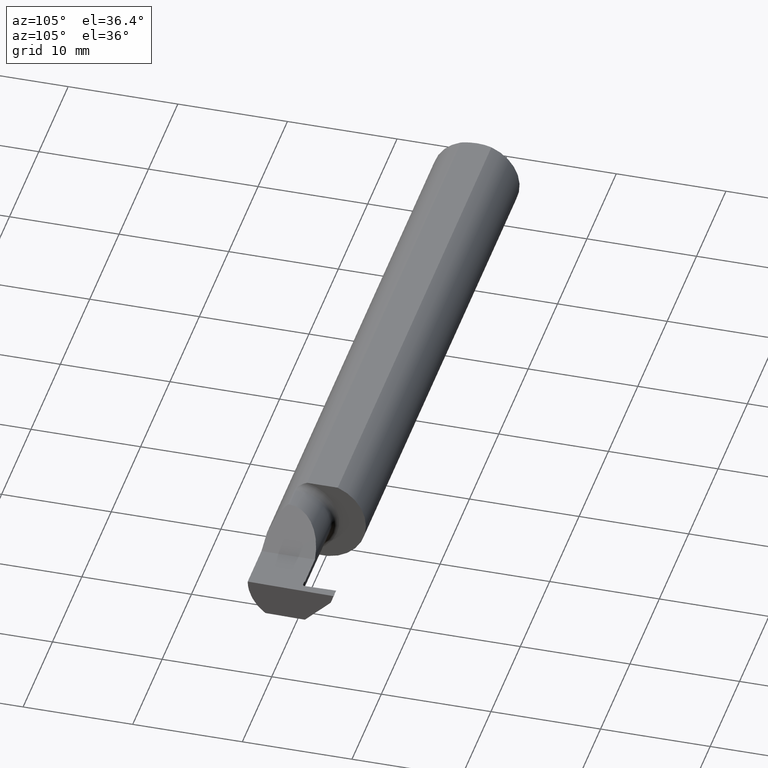
[diagram: clean part render]
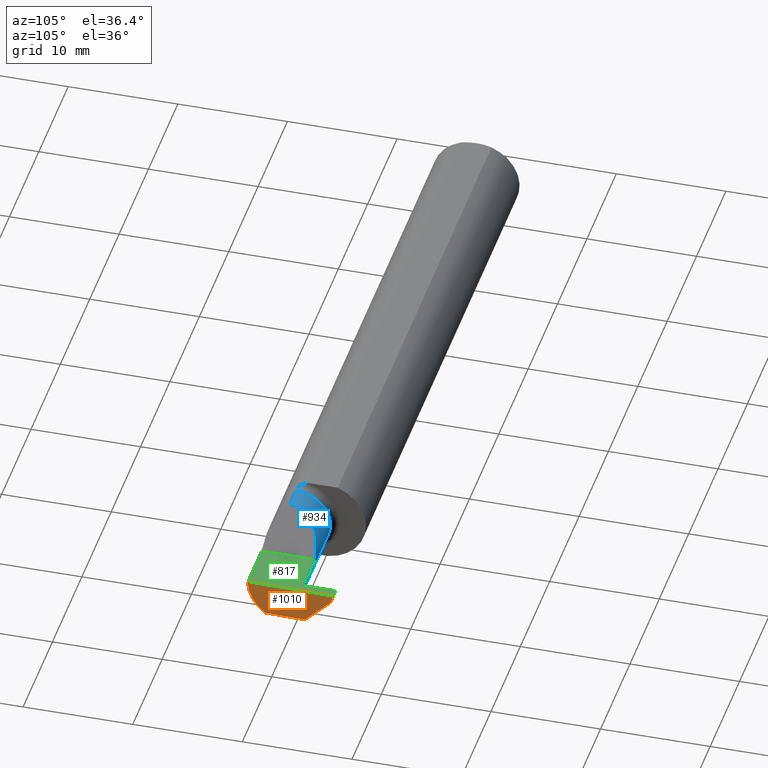
[diagram: same view with three faces highlighted in distinct colors, each labeled with its STEP entity id]
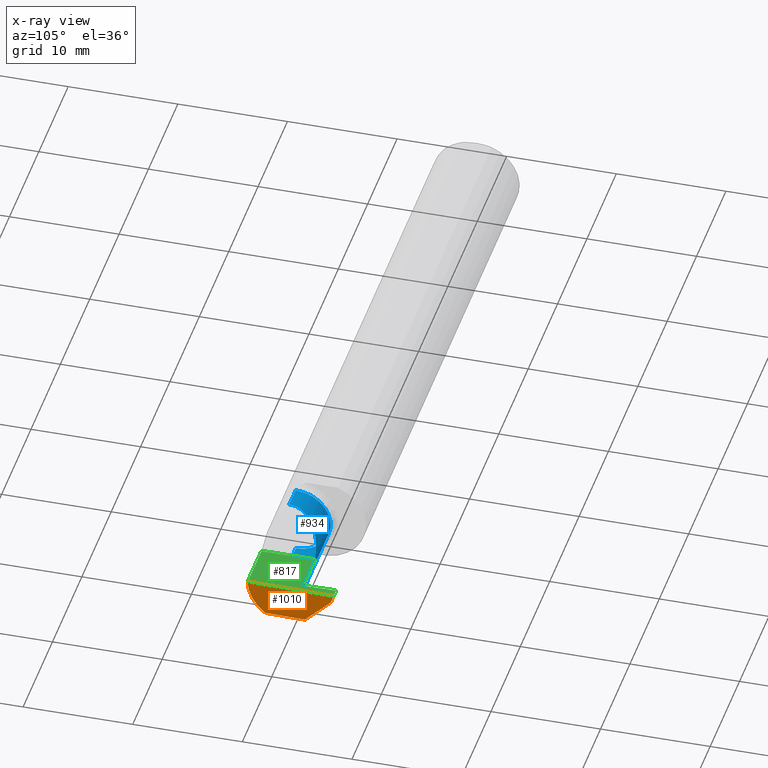
[diagram: x-ray of the same camera — body ghosted, the three highlighted faces saturated]
A machine part, auxiliary view with three faces highlighted in distinct colors.
The next image is the same camera in x-ray (body ghosted, the three faces saturated) — at least one of them is partly hidden behind the body in this view.
Their STEP definitions:

[orange] entity #1010 — the highlighted planar face has unit normal (-0.9995, 0.0174, 0.0262).
#18 = LINE ( 'NONE', #674, #98 ) ;
#23 = CARTESIAN_POINT ( 'NONE',  ( 2.500000000000000000, 0.1539000000000000090, 0.000000000000000000 ) ) ;
#45 = ORIENTED_EDGE ( 'NONE', *, *, #777, .F. ) ;
#57 =( BOUNDED_CURVE ( )  B_SPLINE_CURVE ( 3, ( #101, #245, #263, #589 ),
 .UNSPECIFIED., .F., .T. ) 
 B_SPLINE_CURVE_WITH_KNOTS ( ( 4, 4 ),
 ( 0.5517985523994612951, 0.5878737167659243701 ),
 .UNSPECIFIED. ) 
 CURVE ( )  GEOMETRIC_REPRESENTATION_ITEM ( )  RATIONAL_B_SPLINE_CURVE ( ( 1.000000000000000000, 0.9998915514833921492, 0.9998915514833921492, 1.000000000000000000 ) ) 
 REPRESENTATION_ITEM ( '' )  );
#98 = VECTOR ( 'NONE', #346, 39.37007874015748143 ) ;
#101 = CARTESIAN_POINT ( 'NONE',  ( 2.492408115719126460, -0.09360841750841747411, -0.1249186702281520206 ) ) ;
#105 = FACE_OUTER_BOUND ( 'NONE', #519, .T. ) ;
#113 = ORIENTED_EDGE ( 'NONE', *, *, #555, .T. ) ;
#119 = ORIENTED_EDGE ( 'NONE', *, *, #508, .T. ) ;
#134 = DIRECTION ( 'NONE',  ( -0.01745240643727716257, -0.9998476951563912696, 1.869448656733061176E-16 ) ) ;
#157 = CARTESIAN_POINT ( 'NONE',  ( 2.499907390804593899, 0.1529096977137292535, -0.002876046671974680051 ) ) ;
#209 = DIRECTION ( 'NONE',  ( -0.9995050723230146650, 0.01744642593347468448, 0.02617694830787320806 ) ) ;
#221 = VECTOR ( 'NONE', #256, 39.37007874015748854 ) ;
#241 = ORIENTED_EDGE ( 'NONE', *, *, #895, .F. ) ;
#245 = CARTESIAN_POINT ( 'NONE',  ( 2.492432917398131220, -0.09210618219364773152, -0.1249728871357007887 ) ) ;
#248 = VERTEX_POINT ( 'NONE', #807 ) ;
#256 = DIRECTION ( 'NONE',  ( -0.03043175897092292859, -0.3254173665140246419, -0.9450806556146477133 ) ) ;
#263 = CARTESIAN_POINT ( 'NONE',  ( 2.492458441733171881, -0.09060321336276837279, -0.1250000000000000278 ) ) ;
#320 = CARTESIAN_POINT ( 'NONE',  ( 2.492495113650786021, -0.1336908980339254205, -0.09488266708345007017 ) ) ;
#323 = EDGE_CURVE ( 'NONE', #822, #838, #365, .T. ) ;
#331 = VERTEX_POINT ( 'NONE', #415 ) ;
#346 = DIRECTION ( 'NONE',  ( -0.01745240643727716603, -0.9998476951563912696, 0.000000000000000000 ) ) ;
#348 = VECTOR ( 'NONE', #134, 39.37007874015748143 ) ;
#358 = DIRECTION ( 'NONE',  ( 0.02618093305822682959, 0.000000000000000000, 0.9996572206232497981 ) ) ;
#365 =( BOUNDED_CURVE ( )  B_SPLINE_CURVE ( 3, ( #727, #320, #490, #403 ),
 .UNSPECIFIED., .F., .T. ) 
 B_SPLINE_CURVE_WITH_KNOTS ( ( 4, 4 ),
 ( 0.05521439950980804034, 0.9829226100289724100 ),
 .UNSPECIFIED. ) 
 CURVE ( )  GEOMETRIC_REPRESENTATION_ITEM ( )  RATIONAL_B_SPLINE_CURVE ( ( 1.000000000000000000, 0.9295565493311498395, 0.9295565493311498395, 1.000000000000000000 ) ) 
 REPRESENTATION_ITEM ( '' )  );
#378 = CARTESIAN_POINT ( 'NONE',  ( 2.492484680420020027, -0.08910000000000001252, -0.1250000000000000000 ) ) ;
#403 = CARTESIAN_POINT ( 'NONE',  ( 2.494588929872255001, -0.1561000000000000443, 0.000000000000000000 ) ) ;
#415 = CARTESIAN_POINT ( 'NONE',  ( 2.500000000000000000, 0.1539000000000000090, 0.000000000000000000 ) ) ;
#461 = EDGE_CURVE ( 'NONE', #794, #248, #819, .T. ) ;
#490 = CARTESIAN_POINT ( 'NONE',  ( 2.493277140361873201, -0.1561000000000000165, -0.05008759057876776416 ) ) ;
#508 = EDGE_CURVE ( 'NONE', #331, #838, #18, .T. ) ;
#519 = EDGE_LOOP ( 'NONE', ( #113, #45, #938, #241, #119, #766 ) ) ;
#555 = EDGE_CURVE ( 'NONE', #822, #728, #57, .T. ) ;
#557 = DIRECTION ( 'NONE',  ( -0.03084697155452407330, -0.7067702824630920366, -0.7067702824630894831 ) ) ;
#589 = CARTESIAN_POINT ( 'NONE',  ( 2.492484680420020027, -0.08910000000000001252, -0.1250000000000000000 ) ) ;
#608 = CARTESIAN_POINT ( 'NONE',  ( 2.494588929872255001, -0.1561000000000000443, 0.000000000000000000 ) ) ;
#631 = AXIS2_PLACEMENT_3D ( 'NONE', #23, #209, #358 ) ;
#674 = CARTESIAN_POINT ( 'NONE',  ( 2.500000000000000000, 0.1539000000000000090, 0.000000000000000000 ) ) ;
#727 = CARTESIAN_POINT ( 'NONE',  ( 2.492408115719126460, -0.09360841750841747411, -0.1249186702281520206 ) ) ;
#728 = VERTEX_POINT ( 'NONE', #378 ) ;
#733 = VECTOR ( 'NONE', #557, 39.37007874015748854 ) ;
#738 = CARTESIAN_POINT ( 'NONE',  ( 2.495673289801201733, 0.09357530910345747410, -0.1250000000000000278 ) ) ;
#758 = CARTESIAN_POINT ( 'NONE',  ( 2.499001794690755673, 0.1432258439880203515, -0.03099999999999999978 ) ) ;
#766 = ORIENTED_EDGE ( 'NONE', *, *, #323, .F. ) ;
#777 = EDGE_CURVE ( 'NONE', #248, #728, #894, .T. ) ;
#794 = VERTEX_POINT ( 'NONE', #758 ) ;
#807 = CARTESIAN_POINT ( 'NONE',  ( 2.494899167008080454, 0.04922584398801997663, -0.1250000000000000278 ) ) ;
#819 = LINE ( 'NONE', #1001, #733 ) ;
#822 = VERTEX_POINT ( 'NONE', #940 ) ;
#838 = VERTEX_POINT ( 'NONE', #608 ) ;
#894 = LINE ( 'NONE', #738, #348 ) ;
#895 = EDGE_CURVE ( 'NONE', #331, #794, #914, .T. ) ;
#914 = LINE ( 'NONE', #157, #221 ) ;
#938 = ORIENTED_EDGE ( 'NONE', *, *, #461, .F. ) ;
#940 = CARTESIAN_POINT ( 'NONE',  ( 2.492408115719126460, -0.09360841750841747411, -0.1249186702281520206 ) ) ;
#955 = PLANE ( 'NONE',  #631 ) ;
#1001 = CARTESIAN_POINT ( 'NONE',  ( 2.498907590953288960, 0.1410674343035965006, -0.03315840968442382991 ) ) ;
#1010 = ADVANCED_FACE ( 'NONE', ( #105 ), #955, .F. ) ;

[blue] entity #934 — the highlighted cylindrical surface (edge-blend (fillet) strip) has radius 3.175 mm, axis along (-1, -0, -0).
#6 = CARTESIAN_POINT ( 'NONE',  ( 2.075000000000000178, -0.08909999999999998477, 0.000000000000000000 ) ) ;
#14 = ORIENTED_EDGE ( 'NONE', *, *, #539, .F. ) ;
#36 = CARTESIAN_POINT ( 'NONE',  ( 2.448913571814040679, -0.03369782742854583735, -0.1123476434581987121 ) ) ;
#58 = DIRECTION ( 'NONE',  ( -1.000000000000000000, -0.000000000000000000, -0.000000000000000000 ) ) ;
#85 = DIRECTION ( 'NONE',  ( -1.000000000000000000, -0.000000000000000000, -0.000000000000000000 ) ) ;
#99 = CARTESIAN_POINT ( 'NONE',  ( 2.444500000000001450, 0.03590000000000021646, 7.028497217765240013E-18 ) ) ;
#100 = CARTESIAN_POINT ( 'NONE',  ( 2.445747129114879570, 0.03189735516174353053, -0.03242710832155492467 ) ) ;
#109 = CARTESIAN_POINT ( 'NONE',  ( 2.449147741309573245, -0.04875164844263554093, -0.1185892248176496910 ) ) ;
#114 = VECTOR ( 'NONE', #147, 39.37007874015748143 ) ;
#116 = AXIS2_PLACEMENT_3D ( 'NONE', #6, #847, #338 ) ;
#132 = LINE ( 'NONE', #474, #614 ) ;
#147 = DIRECTION ( 'NONE',  ( 1.000000000000000000, 0.000000000000000000, 0.000000000000000000 ) ) ;
#159 = CARTESIAN_POINT ( 'NONE',  ( 2.075000000000000178, -0.08909999999999998477, 0.1250000000000000000 ) ) ;
#176 = FACE_OUTER_BOUND ( 'NONE', #194, .T. ) ;
#182 = CARTESIAN_POINT ( 'NONE',  ( 2.185000000000000941, -0.08909999999999998477, 0.1250000000000000000 ) ) ;
#194 = EDGE_LOOP ( 'NONE', ( #651, #714, #663, #14, #297, #532 ) ) ;
#205 = AXIS2_PLACEMENT_3D ( 'NONE', #841, #85, #512 ) ;
#291 = VERTEX_POINT ( 'NONE', #99 ) ;
#297 = ORIENTED_EDGE ( 'NONE', *, *, #852, .T. ) ;
#299 = EDGE_CURVE ( 'NONE', #381, #291, #1077, .T. ) ;
#303 = B_SPLINE_CURVE_WITH_KNOTS ( 'NONE', 3,
 ( #456, #549, #1029, #100, #627, #952, #795, #373, #865, #1042, #443, #369, #36, #109, #878, #695, #622, #782 ),
 .UNSPECIFIED., .F., .F.,
 ( 4, 2, 2, 2, 2, 2, 2, 2, 4 ),
 ( 0.000000000000000000, 0.0006227411263175623192, 0.001245482252635124855, 0.001868223378952687391, 0.002490964505270250144, 0.003113705631587812897, 0.003736446757905374783, 0.004359187884222936668, 0.004981929010540499421 ),
 .UNSPECIFIED. ) ;
#338 = DIRECTION ( 'NONE',  ( 0.000000000000000000, 0.000000000000000000, 1.000000000000000000 ) ) ;
#345 = CARTESIAN_POINT ( 'NONE',  ( 2.310000000000000053, 0.03589999999999998748, 2.326828918379970872E-17 ) ) ;
#369 = CARTESIAN_POINT ( 'NONE',  ( 2.448786593093536190, -0.02650700096796818062, -0.1085120213767435671 ) ) ;
#373 = CARTESIAN_POINT ( 'NONE',  ( 2.447475350432988250, 0.01027685705744558337, -0.07626677045909124875 ) ) ;
#381 = VERTEX_POINT ( 'NONE', #995 ) ;
#426 = CYLINDRICAL_SURFACE ( 'NONE', #116, 0.1250000000000000000 ) ;
#443 = CARTESIAN_POINT ( 'NONE',  ( 2.448432691260384875, -0.01281923365878035945, -0.09936793747224019480 ) ) ;
#456 = CARTESIAN_POINT ( 'NONE',  ( 2.444500000000001450, 0.03590000000000021646, 7.028497217765240013E-18 ) ) ;
#464 = EDGE_CURVE ( 'NONE', #863, #709, #132, .T. ) ;
#474 = CARTESIAN_POINT ( 'NONE',  ( 2.075000000000000178, -0.08909999999999995701, -0.1250000000000000000 ) ) ;
#483 = CARTESIAN_POINT ( 'NONE',  ( 2.100000000000000089, -0.08909999999999998477, 0.1250000000000000000 ) ) ;
#512 = DIRECTION ( 'NONE',  ( 0.000000000000000000, 0.000000000000000000, 1.000000000000000000 ) ) ;
#532 = ORIENTED_EDGE ( 'NONE', *, *, #299, .T. ) ;
#539 = EDGE_CURVE ( 'NONE', #705, #742, #679, .T. ) ;
#540 = VECTOR ( 'NONE', #582, 39.37007874015748143 ) ;
#549 = CARTESIAN_POINT ( 'NONE',  ( 2.444820317936796439, 0.03589999999676755926, -0.008251322930408698172 ) ) ;
#582 = DIRECTION ( 'NONE',  ( -1.000000000000000000, -0.000000000000000000, -0.000000000000000000 ) ) ;
#614 = VECTOR ( 'NONE', #58, 39.37007874015748143 ) ;
#617 = CIRCLE ( 'NONE', #205, 0.1250000000000000000 ) ;
#622 = CARTESIAN_POINT ( 'NONE',  ( 2.449436886767953236, -0.08088281936207376843, -0.1249999999999948652 ) ) ;
#627 = CARTESIAN_POINT ( 'NONE',  ( 2.446076663561052911, 0.02947894743701958906, -0.04037901243118214439 ) ) ;
#651 = ORIENTED_EDGE ( 'NONE', *, *, #965, .T. ) ;
#663 = ORIENTED_EDGE ( 'NONE', *, *, #929, .F. ) ;
#678 = CARTESIAN_POINT ( 'NONE',  ( 2.449428652511891347, -0.08909999999992181119, -0.1250000000000000000 ) ) ;
#679 = LINE ( 'NONE', #159, #540 ) ;
#695 = CARTESIAN_POINT ( 'NONE',  ( 2.449412845796527627, -0.07276030810656958225, -0.1241975159408240242 ) ) ;
#705 = VERTEX_POINT ( 'NONE', #804 ) ;
#709 = VERTEX_POINT ( 'NONE', #1044 ) ;
#714 = ORIENTED_EDGE ( 'NONE', *, *, #464, .T. ) ;
#736 =( BOUNDED_CURVE ( )  B_SPLINE_CURVE ( 3, ( #182, #751, #835, #345 ),
 .UNSPECIFIED., .F., .T. ) 
 B_SPLINE_CURVE_WITH_KNOTS ( ( 4, 4 ),
 ( 0.000000000000000000, 1.570796326794896558 ),
 .UNSPECIFIED. ) 
 CURVE ( )  GEOMETRIC_REPRESENTATION_ITEM ( )  RATIONAL_B_SPLINE_CURVE ( ( 1.000000000000000000, 0.8047378541243649375, 0.8047378541243649375, 1.000000000000000000 ) ) 
 REPRESENTATION_ITEM ( '' )  );
#742 = VERTEX_POINT ( 'NONE', #483 ) ;
#751 = CARTESIAN_POINT ( 'NONE',  ( 2.185000000000000941, -0.01587669529663685714, 0.1250000000000000278 ) ) ;
#782 = CARTESIAN_POINT ( 'NONE',  ( 2.449428652511891347, -0.08909999999992181119, -0.1250000000000000000 ) ) ;
#795 = CARTESIAN_POINT ( 'NONE',  ( 2.446973910809204789, 0.01939704973137100844, -0.06261605380782227226 ) ) ;
#804 = CARTESIAN_POINT ( 'NONE',  ( 2.185000000000000941, -0.08909999999999998477, 0.1250000000000000000 ) ) ;
#835 = CARTESIAN_POINT ( 'NONE',  ( 2.236776695296637474, 0.03590000000000000829, 0.07322330470336313457 ) ) ;
#841 = CARTESIAN_POINT ( 'NONE',  ( 2.100000000000000089, -0.08909999999999998477, 0.000000000000000000 ) ) ;
#847 = DIRECTION ( 'NONE',  ( -1.000000000000000000, -0.000000000000000000, -0.000000000000000000 ) ) ;
#852 = EDGE_CURVE ( 'NONE', #705, #381, #736, .T. ) ;
#863 = VERTEX_POINT ( 'NONE', #678 ) ;
#865 = CARTESIAN_POINT ( 'NONE',  ( 2.447717782613099136, 0.005034117901016837808, -0.08264370434526394082 ) ) ;
#878 = CARTESIAN_POINT ( 'NONE',  ( 2.449257651831035609, -0.05670267983408994183, -0.1210058764817270593 ) ) ;
#904 = CARTESIAN_POINT ( 'NONE',  ( 2.075000000000000178, 0.03590000000000001523, 5.204748896376252548E-17 ) ) ;
#929 = EDGE_CURVE ( 'NONE', #742, #709, #617, .T. ) ;
#934 = ADVANCED_FACE ( 'NONE', ( #176 ), #426, .T. ) ;
#952 = CARTESIAN_POINT ( 'NONE',  ( 2.446698173342042981, 0.02323142959458846316, -0.05543537990692436884 ) ) ;
#965 = EDGE_CURVE ( 'NONE', #291, #863, #303, .T. ) ;
#995 = CARTESIAN_POINT ( 'NONE',  ( 2.310000000000000053, 0.03589999999999998748, 2.326828918379970872E-17 ) ) ;
#1029 = CARTESIAN_POINT ( 'NONE',  ( 2.445122545141267700, 0.03509086031723458732, -0.01638619919017508114 ) ) ;
#1042 = CARTESIAN_POINT ( 'NONE',  ( 2.448195783567137962, -0.006474748187421876418, -0.09415031483653144018 ) ) ;
#1044 = CARTESIAN_POINT ( 'NONE',  ( 2.100000000000000089, -0.08909999999999995701, -0.1250000000000000000 ) ) ;
#1077 = LINE ( 'NONE', #904, #114 ) ;

[green] entity #817 — the highlighted planar face has unit normal (-0, 0, -1).
#3 = B_SPLINE_CURVE_WITH_KNOTS ( 'NONE', 1,
 ( #166, #516 ),
 .UNSPECIFIED., .F., .F.,
 ( 2, 2 ),
 ( 0.000000000000000000, 7.184204902311108558E-05 ),
 .UNSPECIFIED. ) ;
#12 = CARTESIAN_POINT ( 'NONE',  ( 2.461471356043865466, 0.03389999999999760566, -4.703959171106423870E-11 ) ) ;
#18 = LINE ( 'NONE', #674, #98 ) ;
#20 = EDGE_CURVE ( 'NONE', #149, #331, #826, .T. ) ;
#31 = VECTOR ( 'NONE', #563, 39.37007874015748143 ) ;
#54 = ORIENTED_EDGE ( 'NONE', *, *, #1056, .F. ) ;
#81 = CARTESIAN_POINT ( 'NONE',  ( 2.399999999999999911, 0.1539000000000000090, -2.694222958124035986E-19 ) ) ;
#98 = VECTOR ( 'NONE', #346, 39.37007874015748143 ) ;
#99 = CARTESIAN_POINT ( 'NONE',  ( 2.444500000000001450, 0.03590000000000021646, 7.028497217765240013E-18 ) ) ;
#114 = VECTOR ( 'NONE', #147, 39.37007874015748143 ) ;
#147 = DIRECTION ( 'NONE',  ( 1.000000000000000000, 0.000000000000000000, 0.000000000000000000 ) ) ;
#148 = VECTOR ( 'NONE', #641, 39.37007874015748143 ) ;
#149 = VERTEX_POINT ( 'NONE', #1013 ) ;
#166 = CARTESIAN_POINT ( 'NONE',  ( 2.446500000003375419, 0.03390000000033663308, -4.831952167884444169E-11 ) ) ;
#171 = CARTESIAN_POINT ( 'NONE',  ( 2.310000000000000053, -0.1560999999999999888, 2.326828918379970872E-17 ) ) ;
#174 = ORIENTED_EDGE ( 'NONE', *, *, #20, .F. ) ;
#188 = VECTOR ( 'NONE', #416, 39.37007874015748143 ) ;
#196 = EDGE_CURVE ( 'NONE', #1027, #291, #3, .T. ) ;
#208 = VERTEX_POINT ( 'NONE', #406 ) ;
#238 = LINE ( 'NONE', #643, #31 ) ;
#251 = CARTESIAN_POINT ( 'NONE',  ( 2.500000000000000000, -0.2000000000000000111, 0.000000000000000000 ) ) ;
#268 = DIRECTION ( 'NONE',  ( -1.000000000000000000, 0.000000000000000000, 1.224646799147353700E-16 ) ) ;
#273 = CARTESIAN_POINT ( 'NONE',  ( 2.446500000003375419, 0.03390000000033663308, -4.831952167884444169E-11 ) ) ;
#291 = VERTEX_POINT ( 'NONE', #99 ) ;
#299 = EDGE_CURVE ( 'NONE', #381, #291, #1077, .T. ) ;
#329 = CARTESIAN_POINT ( 'NONE',  ( 2.468470289915451144, 0.04102216684466004210, -1.256631166235876803E-10 ) ) ;
#331 = VERTEX_POINT ( 'NONE', #415 ) ;
#334 = CARTESIAN_POINT ( 'NONE',  ( 2.461471356043865466, 0.03389999999999760566, -4.703959171106423870E-11 ) ) ;
#346 = DIRECTION ( 'NONE',  ( -0.01745240643727716603, -0.9998476951563912696, 0.000000000000000000 ) ) ;
#356 = ORIENTED_EDGE ( 'NONE', *, *, #508, .F. ) ;
#359 = B_SPLINE_CURVE_WITH_KNOTS ( 'NONE', 1,
 ( #334, #444 ),
 .UNSPECIFIED., .F., .F.,
 ( 2, 2 ),
 ( 0.000000000000000000, 0.0003802724434284338040 ),
 .UNSPECIFIED. ) ;
#367 = ORIENTED_EDGE ( 'NONE', *, *, #299, .F. ) ;
#377 = CARTESIAN_POINT ( 'NONE',  ( 2.310000000000000053, -0.2000000000000000111, 2.326828918379970872E-17 ) ) ;
#381 = VERTEX_POINT ( 'NONE', #995 ) ;
#382 = EDGE_CURVE ( 'NONE', #838, #871, #238, .T. ) ;
#386 = ORIENTED_EDGE ( 'NONE', *, *, #446, .T. ) ;
#392 = EDGE_CURVE ( 'NONE', #149, #208, #595, .T. ) ;
#405 = ORIENTED_EDGE ( 'NONE', *, *, #497, .T. ) ;
#406 = CARTESIAN_POINT ( 'NONE',  ( 2.468470289915451144, 0.04102216684466004210, -1.256631166235876803E-10 ) ) ;
#414 = PLANE ( 'NONE',  #488 ) ;
#415 = CARTESIAN_POINT ( 'NONE',  ( 2.500000000000000000, 0.1539000000000000090, 0.000000000000000000 ) ) ;
#416 = DIRECTION ( 'NONE',  ( 1.000000000000000000, -0.000000000000000000, -0.000000000000000000 ) ) ;
#444 = CARTESIAN_POINT ( 'NONE',  ( 2.446500000003375419, 0.03390000000033663308, -4.831952167884444169E-11 ) ) ;
#446 = EDGE_CURVE ( 'NONE', #208, #600, #1037, .T. ) ;
#488 = AXIS2_PLACEMENT_3D ( 'NONE', #251, #1090, #268 ) ;
#497 = EDGE_CURVE ( 'NONE', #600, #1027, #359, .T. ) ;
#503 = ORIENTED_EDGE ( 'NONE', *, *, #392, .T. ) ;
#508 = EDGE_CURVE ( 'NONE', #331, #838, #18, .T. ) ;
#516 = CARTESIAN_POINT ( 'NONE',  ( 2.444500000000001450, 0.03590000000000021646, 7.028497217765240013E-18 ) ) ;
#563 = DIRECTION ( 'NONE',  ( -1.000000000000000000, -0.000000000000000000, -0.000000000000000000 ) ) ;
#577 = CARTESIAN_POINT ( 'NONE',  ( 2.468470289915451144, 0.04102216684466004210, -1.256631166235876803E-10 ) ) ;
#595 = B_SPLINE_CURVE_WITH_KNOTS ( 'NONE', 1,
 ( #979, #577 ),
 .UNSPECIFIED., .F., .F.,
 ( 2, 2 ),
 ( 6.845491007851898374E-15, 0.002867533701434277216 ),
 .UNSPECIFIED. ) ;
#600 = VERTEX_POINT ( 'NONE', #12 ) ;
#608 = CARTESIAN_POINT ( 'NONE',  ( 2.494588929872255001, -0.1561000000000000443, 0.000000000000000000 ) ) ;
#618 = ORIENTED_EDGE ( 'NONE', *, *, #196, .T. ) ;
#641 = DIRECTION ( 'NONE',  ( -0.000000000000000000, 1.000000000000000000, -0.000000000000000000 ) ) ;
#643 = CARTESIAN_POINT ( 'NONE',  ( 3.749399456654646757E-32, -0.1560999999999999888, 3.061616997868384127E-16 ) ) ;
#654 = CARTESIAN_POINT ( 'NONE',  ( 2.465628833460029146, 0.03389999999987937385, -1.205295658583310168E-10 ) ) ;
#667 = CARTESIAN_POINT ( 'NONE',  ( 2.461471356043865466, 0.03389999999999760566, -4.703959171106423870E-11 ) ) ;
#673 = FACE_OUTER_BOUND ( 'NONE', #798, .T. ) ;
#674 = CARTESIAN_POINT ( 'NONE',  ( 2.500000000000000000, 0.1539000000000000090, 0.000000000000000000 ) ) ;
#798 = EDGE_LOOP ( 'NONE', ( #1021, #356, #174, #503, #386, #405, #618, #367, #54 ) ) ;
#817 = ADVANCED_FACE ( 'NONE', ( #673 ), #414, .F. ) ;
#826 = LINE ( 'NONE', #81, #188 ) ;
#838 = VERTEX_POINT ( 'NONE', #608 ) ;
#871 = VERTEX_POINT ( 'NONE', #171 ) ;
#872 = LINE ( 'NONE', #377, #148 ) ;
#904 = CARTESIAN_POINT ( 'NONE',  ( 2.075000000000000178, 0.03590000000000001523, 5.204748896376252548E-17 ) ) ;
#979 = CARTESIAN_POINT ( 'NONE',  ( 2.466499999986527136, 0.1539000000000000090, -2.694222958124035986E-19 ) ) ;
#984 = CARTESIAN_POINT ( 'NONE',  ( 2.468542847896572301, 0.03686532263356515071, -1.229295649122165528E-10 ) ) ;
#995 = CARTESIAN_POINT ( 'NONE',  ( 2.310000000000000053, 0.03589999999999998748, 2.326828918379970872E-17 ) ) ;
#1013 = CARTESIAN_POINT ( 'NONE',  ( 2.466499999986527136, 0.1539000000000000090, -2.694222958124035986E-19 ) ) ;
#1021 = ORIENTED_EDGE ( 'NONE', *, *, #382, .F. ) ;
#1027 = VERTEX_POINT ( 'NONE', #273 ) ;
#1037 =( BOUNDED_CURVE ( )  B_SPLINE_CURVE ( 3, ( #329, #984, #654, #667 ),
 .UNSPECIFIED., .F., .T. ) 
 B_SPLINE_CURVE_WITH_KNOTS ( ( 4, 4 ),
 ( 8.673617379884047028E-19, 0.0002808519285672452697 ),
 .UNSPECIFIED. ) 
 CURVE ( )  GEOMETRIC_REPRESENTATION_ITEM ( )  RATIONAL_B_SPLINE_CURVE ( ( 1.000000000000000000, 0.8006061761999023751, 0.8006061761999023751, 1.000000000000000000 ) ) 
 REPRESENTATION_ITEM ( '' )  );
#1056 = EDGE_CURVE ( 'NONE', #871, #381, #872, .T. ) ;
#1077 = LINE ( 'NONE', #904, #114 ) ;
#1090 = DIRECTION ( 'NONE',  ( -1.224646799147353700E-16, 0.000000000000000000, -1.000000000000000000 ) ) ;